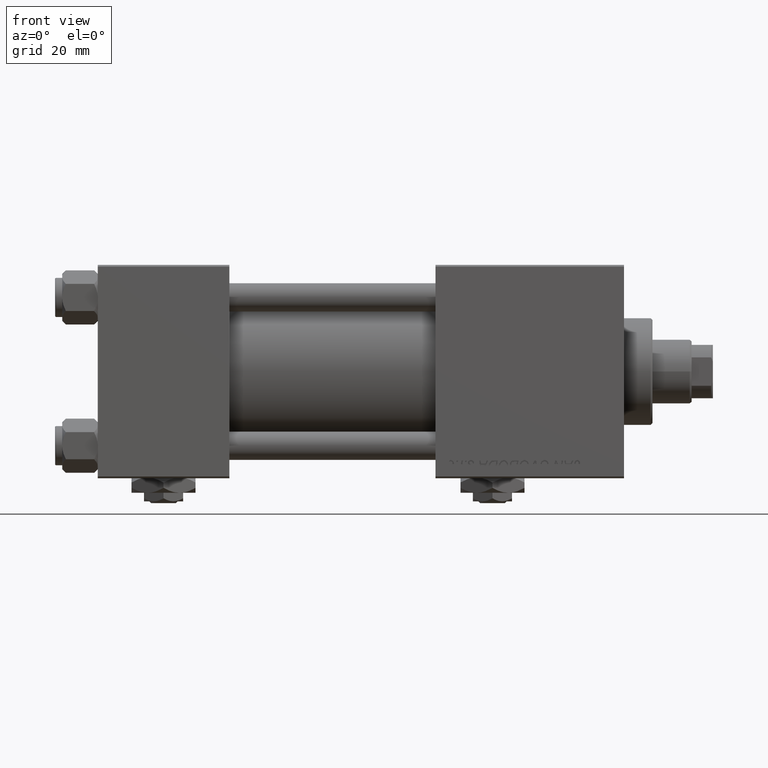
[diagram: clean part render]
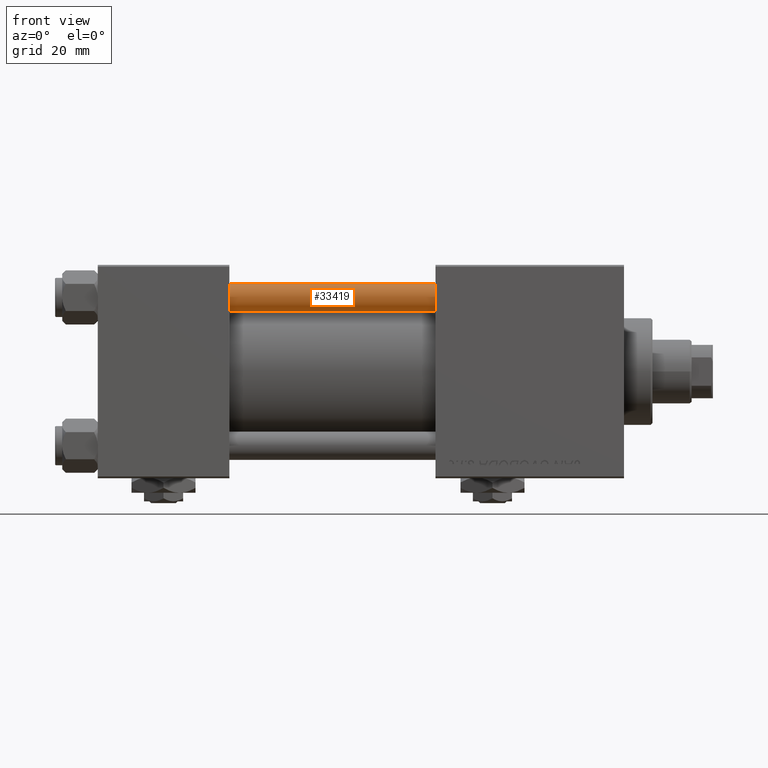
[diagram: same view with one face highlighted and labeled with its STEP entity id]
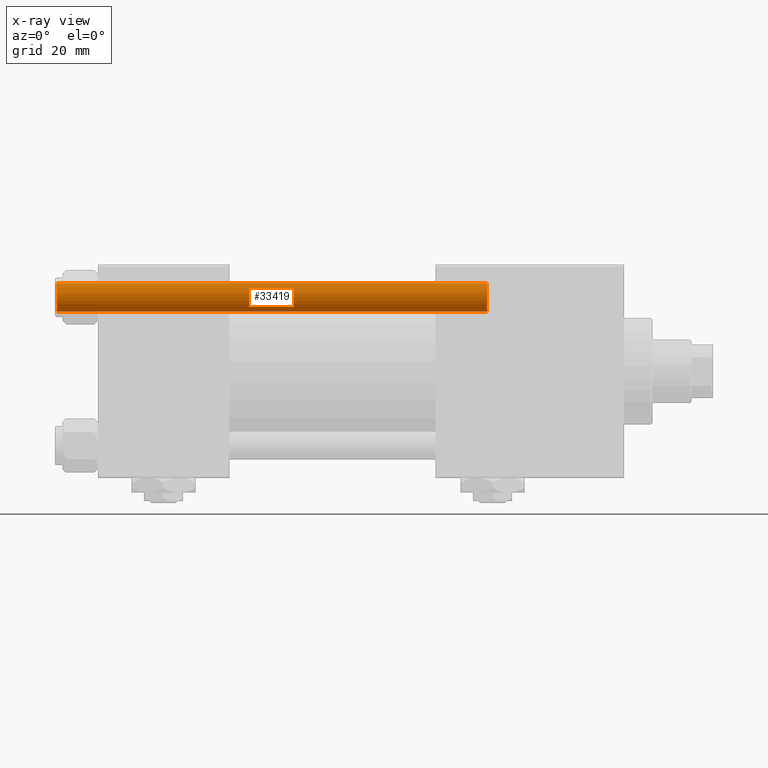
[diagram: x-ray of the same camera — body ghosted, the highlighted face saturated]
A machine part, front view. The second image highlights one B-rep face of the part: STEP entity #33419.
The next image is the same camera in x-ray: the body ghosted, the highlighted face saturated — about 0% of this face is hidden behind the body in this view.
In plain terms, the highlighted cylindrical surface (edge-blend (fillet) strip) has radius 4 mm, axis along (1, 0, -0).
Its self-contained STEP definition (entity closure, byte-faithful):
#4196 = LINE ( 'NONE', #48847, #6694 ) ;
#4692 = ORIENTED_EDGE ( 'NONE', *, *, #11722, .T. ) ;
#6694 = VECTOR ( 'NONE', #8944, 1000.000000000000000 ) ;
#7372 = ORIENTED_EDGE ( 'NONE', *, *, #13016, .T. ) ;
#8686 = DIRECTION ( 'NONE',  ( -0.000000000000000000, -0.000000000000000000, 1.000000000000000000 ) ) ;
#8944 = DIRECTION ( 'NONE',  ( -0.000000000000000000, -0.000000000000000000, -1.000000000000000000 ) ) ;
#8987 = CYLINDRICAL_SURFACE ( 'NONE', #34444, 4.000000000000000000 ) ;
#10960 = CARTESIAN_POINT ( 'NONE',  ( -4.000000000000000000, 0.000000000000000000, 0.5000000000000559552 ) ) ;
#11722 = EDGE_CURVE ( 'NONE', #50937, #33150, #31384, .T. ) ;
#13016 = EDGE_CURVE ( 'NONE', #52127, #47950, #45766, .T. ) ;
#16864 = DIRECTION ( 'NONE',  ( 1.000000000000000000, 0.000000000000000000, 0.000000000000000000 ) ) ;
#20816 = LINE ( 'NONE', #28731, #31848 ) ;
#21124 = CARTESIAN_POINT ( 'NONE',  ( 0.000000000000000000, 0.000000000000000000, 122.0000000000000000 ) ) ;
#21188 = CARTESIAN_POINT ( 'NONE',  ( 4.000000000000000000, 4.898587196589411843E-16, 121.5000000000000426 ) ) ;
#22984 = AXIS2_PLACEMENT_3D ( 'NONE', #40658, #8686, #16864 ) ;
#28404 = EDGE_CURVE ( 'NONE', #33150, #52127, #20816, .T. ) ;
#28731 = CARTESIAN_POINT ( 'NONE',  ( 4.000000000000000000, 4.898587196589411843E-16, 122.0000000000000000 ) ) ;
#28791 = FACE_OUTER_BOUND ( 'NONE', #30283, .T. ) ;
#30283 = EDGE_LOOP ( 'NONE', ( #4692, #42080, #7372, #51839 ) ) ;
#30958 = CARTESIAN_POINT ( 'NONE',  ( 0.000000000000000000, 0.000000000000000000, 121.5000000000000426 ) ) ;
#31384 = CIRCLE ( 'NONE', #38148, 4.000000000000000000 ) ;
#31848 = VECTOR ( 'NONE', #49863, 1000.000000000000000 ) ;
#33150 = VERTEX_POINT ( 'NONE', #21188 ) ;
#33287 = DIRECTION ( 'NONE',  ( -0.000000000000000000, -0.000000000000000000, -1.000000000000000000 ) ) ;
#33419 = ADVANCED_FACE ( 'NONE', ( #28791 ), #8987, .T. ) ;
#34444 = AXIS2_PLACEMENT_3D ( 'NONE', #21124, #33287, #37514 ) ;
#35945 = EDGE_CURVE ( 'NONE', #50937, #47950, #4196, .T. ) ;
#37514 = DIRECTION ( 'NONE',  ( -1.000000000000000000, 0.000000000000000000, 0.000000000000000000 ) ) ;
#38148 = AXIS2_PLACEMENT_3D ( 'NONE', #30958, #46555, #46822 ) ;
#39135 = CARTESIAN_POINT ( 'NONE',  ( -4.000000000000000000, 0.000000000000000000, 121.5000000000000426 ) ) ;
#40658 = CARTESIAN_POINT ( 'NONE',  ( 0.000000000000000000, 0.000000000000000000, 0.5000000000000559552 ) ) ;
#42080 = ORIENTED_EDGE ( 'NONE', *, *, #28404, .T. ) ;
#43816 = CARTESIAN_POINT ( 'NONE',  ( 4.000000000000000000, 4.898587196589411843E-16, 0.5000000000000559552 ) ) ;
#45766 = CIRCLE ( 'NONE', #22984, 4.000000000000000000 ) ;
#46555 = DIRECTION ( 'NONE',  ( 0.000000000000000000, 0.000000000000000000, -1.000000000000000000 ) ) ;
#46822 = DIRECTION ( 'NONE',  ( 1.000000000000000000, 0.000000000000000000, 0.000000000000000000 ) ) ;
#47950 = VERTEX_POINT ( 'NONE', #10960 ) ;
#48847 = CARTESIAN_POINT ( 'NONE',  ( -4.000000000000000000, 0.000000000000000000, 122.0000000000000000 ) ) ;
#49863 = DIRECTION ( 'NONE',  ( -0.000000000000000000, -0.000000000000000000, -1.000000000000000000 ) ) ;
#50937 = VERTEX_POINT ( 'NONE', #39135 ) ;
#51839 = ORIENTED_EDGE ( 'NONE', *, *, #35945, .F. ) ;
#52127 = VERTEX_POINT ( 'NONE', #43816 ) ;